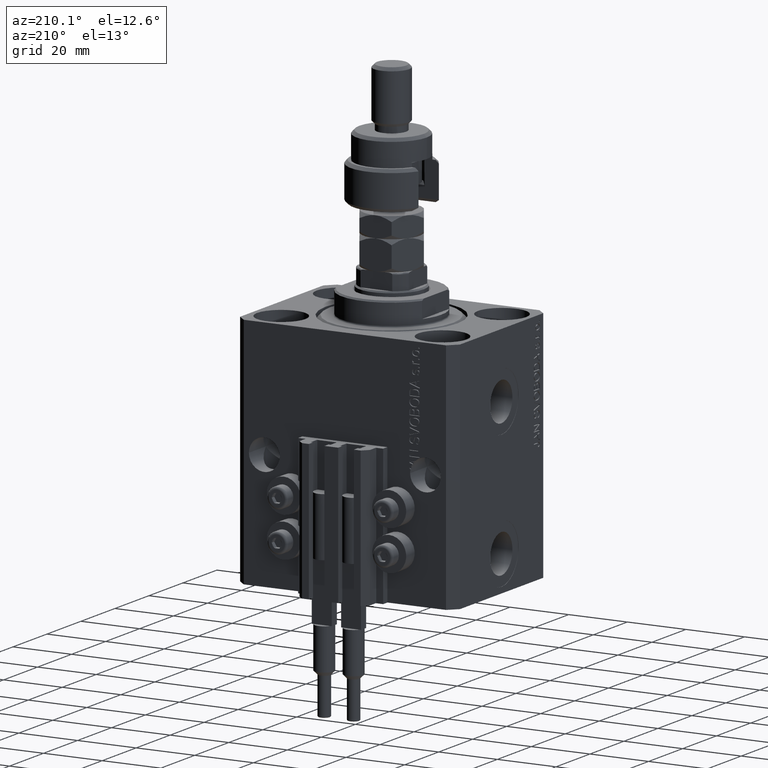
[diagram: clean part render]
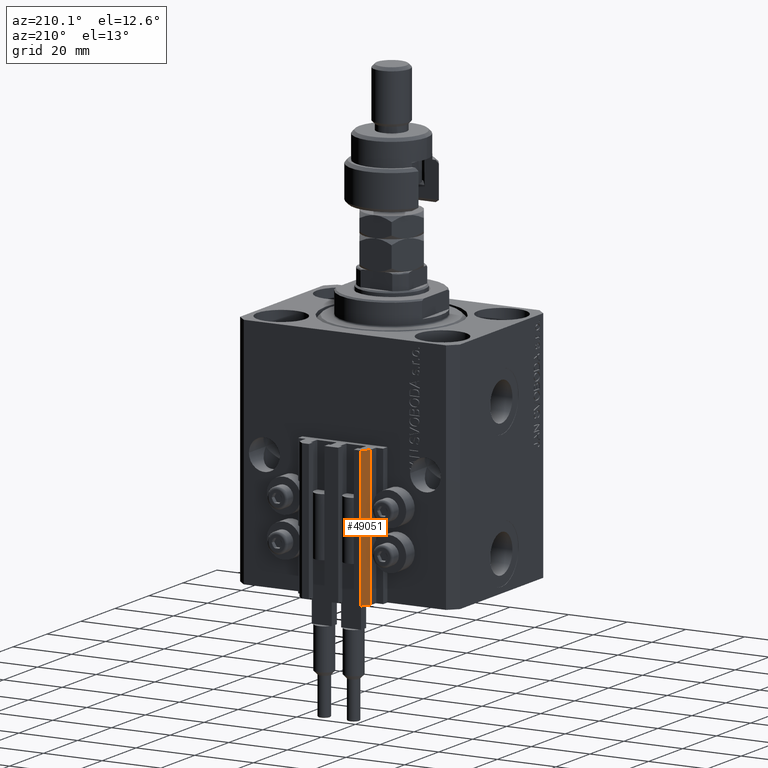
[diagram: same view with one face highlighted and labeled with its STEP entity id]
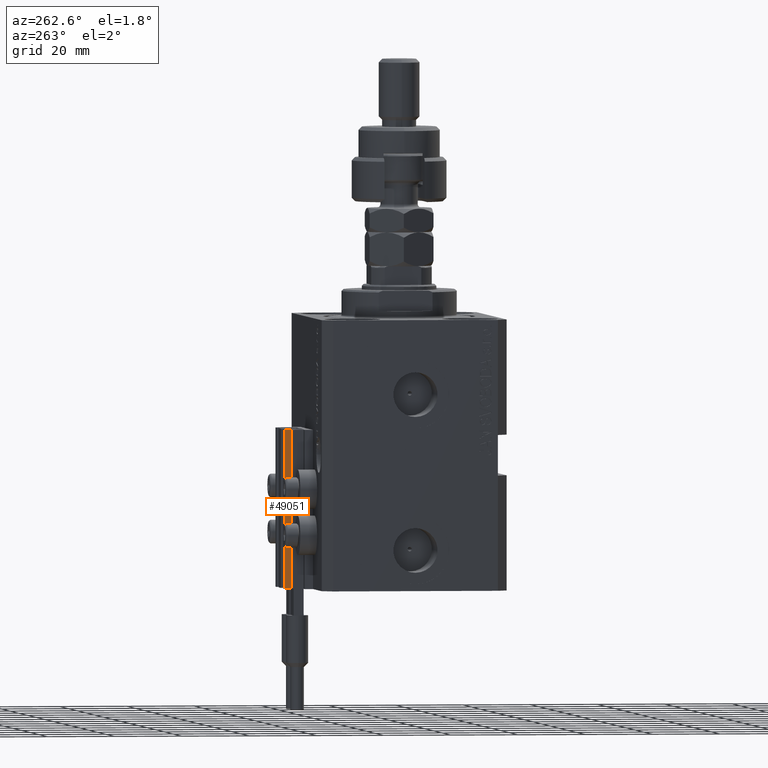
[diagram: same view with one face highlighted and labeled with its STEP entity id]
A machine part, auxiliary view. The second image highlights one B-rep face of the part: STEP entity #49051.
A second angle (auxiliary view) of the same face is appended — the face is thin or edge-on in the first view.
In plain terms, the highlighted planar face has unit normal (-0.7071, 0.7071, 0).
Its self-contained STEP definition (entity closure, byte-faithful):
#230 = DIRECTION ( 'NONE',  ( -0.7071067811865460184, -0.7071067811865490160, 0.000000000000000000 ) ) ;
#2423 = EDGE_CURVE ( 'NONE', #29876, #40393, #44514, .T. ) ;
#2526 = CARTESIAN_POINT ( 'NONE',  ( -12.00000000000000000, 33.49999999999998579, -80.00000000000000000 ) ) ;
#2584 = CARTESIAN_POINT ( 'NONE',  ( -10.00000000000000000, 35.50000000000000000, -80.00000000000000000 ) ) ;
#2832 = FACE_OUTER_BOUND ( 'NONE', #36905, .T. ) ;
#3045 = EDGE_CURVE ( 'NONE', #40393, #16259, #25451, .T. ) ;
#3703 = VECTOR ( 'NONE', #9296, 1000.000000000000227 ) ;
#4773 = ORIENTED_EDGE ( 'NONE', *, *, #32881, .F. ) ;
#5788 = CARTESIAN_POINT ( 'NONE',  ( -10.00000000000000000, 35.50000000000000000, -80.00000000000000000 ) ) ;
#6403 = DIRECTION ( 'NONE',  ( -0.7071067811865490160, 0.7071067811865461294, 0.000000000000000000 ) ) ;
#9213 = DIRECTION ( 'NONE',  ( 0.000000000000000000, 0.000000000000000000, 1.000000000000000000 ) ) ;
#9296 = DIRECTION ( 'NONE',  ( -0.7071067811865460184, -0.7071067811865490160, 0.000000000000000000 ) ) ;
#9551 = CARTESIAN_POINT ( 'NONE',  ( -10.00000000000000000, 35.50000000000000000, -80.00000000000000000 ) ) ;
#11667 = VERTEX_POINT ( 'NONE', #40033 ) ;
#12784 = CARTESIAN_POINT ( 'NONE',  ( -12.00000000000000000, 33.49999999999998579, -33.00000000000000000 ) ) ;
#14047 = PLANE ( 'NONE',  #27962 ) ;
#15320 = VECTOR ( 'NONE', #230, 1000.000000000000227 ) ;
#16259 = VERTEX_POINT ( 'NONE', #12784 ) ;
#17388 = ORIENTED_EDGE ( 'NONE', *, *, #2423, .T. ) ;
#20191 = ORIENTED_EDGE ( 'NONE', *, *, #29257, .F. ) ;
#21634 = DIRECTION ( 'NONE',  ( 0.000000000000000000, 0.000000000000000000, 1.000000000000000000 ) ) ;
#23657 = CARTESIAN_POINT ( 'NONE',  ( -10.00000000000000000, 35.50000000000000000, -33.00000000000000000 ) ) ;
#23911 = CARTESIAN_POINT ( 'NONE',  ( -12.00000000000000000, 33.49999999999998579, -80.00000000000000000 ) ) ;
#24036 = VECTOR ( 'NONE', #21634, 1000.000000000000000 ) ;
#25451 = LINE ( 'NONE', #2526, #24036 ) ;
#27962 = AXIS2_PLACEMENT_3D ( 'NONE', #2584, #6403, #30620 ) ;
#29257 = EDGE_CURVE ( 'NONE', #29876, #11667, #44668, .T. ) ;
#29876 = VERTEX_POINT ( 'NONE', #5788 ) ;
#30620 = DIRECTION ( 'NONE',  ( -0.7071067811865460184, -0.7071067811865489050, 0.000000000000000000 ) ) ;
#32881 = EDGE_CURVE ( 'NONE', #11667, #16259, #34905, .T. ) ;
#34905 = LINE ( 'NONE', #23657, #15320 ) ;
#36905 = EDGE_LOOP ( 'NONE', ( #4773, #20191, #17388, #39887 ) ) ;
#39887 = ORIENTED_EDGE ( 'NONE', *, *, #3045, .T. ) ;
#40033 = CARTESIAN_POINT ( 'NONE',  ( -10.00000000000000000, 35.50000000000000000, -33.00000000000000000 ) ) ;
#40393 = VERTEX_POINT ( 'NONE', #23911 ) ;
#44514 = LINE ( 'NONE', #9551, #3703 ) ;
#44668 = LINE ( 'NONE', #47753, #47811 ) ;
#47753 = CARTESIAN_POINT ( 'NONE',  ( -10.00000000000000000, 35.50000000000000000, -80.00000000000000000 ) ) ;
#47811 = VECTOR ( 'NONE', #9213, 1000.000000000000000 ) ;
#49051 = ADVANCED_FACE ( 'NONE', ( #2832 ), #14047, .T. ) ;